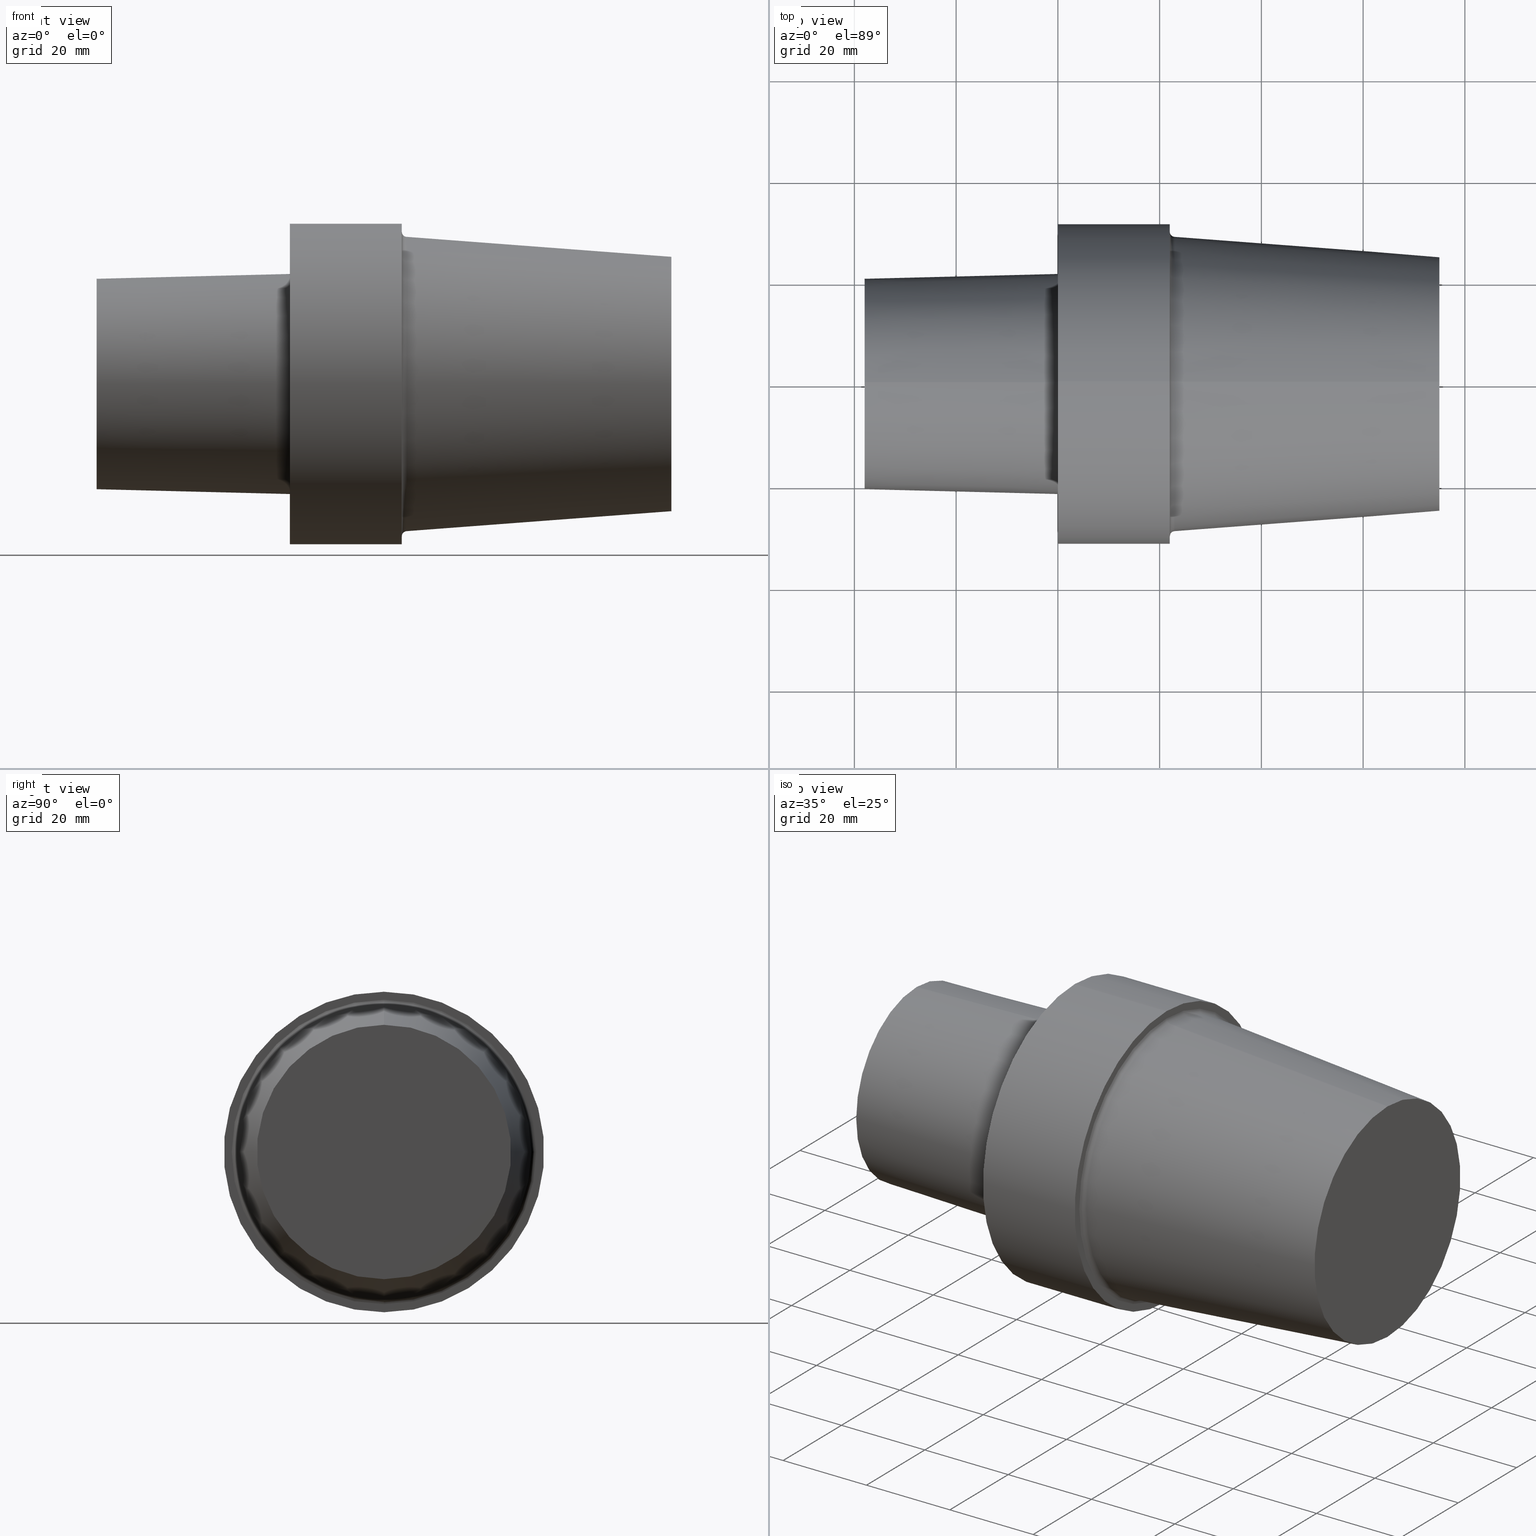
[diagram: canonical four-view strip — front | top / right | iso, engineering-drawing reading convention]
A machine part, canonical four-view strip (front | top / right | iso — engineering-drawing reading convention). The complete STEP part file that produces these views, byte-faithful:
ISO-10303-21;
HEADER;
FILE_DESCRIPTION (( 'STEP AP203' ),
    '1' );
FILE_NAME ('C6-S50-75.stp',
    '2022-03-11T15:33:46',
    ( '' ),
    ( '' ),
    'SwSTEP 2.0',
    'SolidWorks 2021',
    '' );
FILE_SCHEMA (( 'CONFIG_CONTROL_DESIGN' ));
ENDSEC;

DATA;
#1 = EDGE_CURVE ( 'NONE', #379, #260, #272, .T. ) ;
#2 = CARTESIAN_POINT ( 'NONE',  ( 74.99999992349999900, 0.000000000000000000, 0.000000000000000000 ) ) ;
#3 = CARTESIAN_POINT ( 'NONE',  ( 22.99999997654000339, 3.665046059601735471E-15, -29.92737221992073415 ) ) ;
#4 = AXIS2_PLACEMENT_3D ( 'NONE', #16, #364, #249 ) ;
#5 = EDGE_LOOP ( 'NONE', ( #57, #229, #126, #223 ) ) ;
#6 = DIRECTION ( 'NONE',  ( 0.000000000000000000, -1.224646799147346551E-16, 1.000000000000000000 ) ) ;
#7 = CARTESIAN_POINT ( 'NONE',  ( 0.000000000000000000, 0.000000000000000000, -21.63061196907898065 ) ) ;
#8 = LINE ( 'NONE', #239, #291 ) ;
#9 = CIRCLE ( 'NONE', #227, 0.9999999989800008038 ) ;
#10 = PRODUCT ( 'C6-S50-75', 'C6-S50-75', '', ( #366 ) ) ;
#11 = DATE_AND_TIME ( #102, #38 ) ;
#12 = EDGE_CURVE ( 'NONE', #189, #182, #350, .T. ) ;
#13 = PERSON_AND_ORGANIZATION ( #245, #79 ) ;
#14 = AXIS2_PLACEMENT_3D ( 'NONE', #41, #67, #180 ) ;
#15 = AXIS2_PLACEMENT_3D ( 'NONE', #209, #328, #302 ) ;
#16 = CARTESIAN_POINT ( 'NONE',  ( 0.000000000000000000, 0.000000000000000000, 0.000000000000000000 ) ) ;
#17 = CC_DESIGN_PERSON_AND_ORGANIZATION_ASSIGNMENT ( #128, #243, ( #152 ) ) ;
#18 = VERTEX_POINT ( 'NONE', #301 ) ;
#19 = ORIENTED_EDGE ( 'NONE', *, *, #27, .F. ) ;
#20 = CIRCLE ( 'NONE', #235, 31.49999996787000001 ) ;
#21 = COORDINATED_UNIVERSAL_TIME_OFFSET ( 6, 0, .BEHIND. ) ;
#22 = AXIS2_PLACEMENT_3D ( 'NONE', #69, #124, #150 ) ;
#23 = EDGE_LOOP ( 'NONE', ( #383, #311, #140, #289 ) ) ;
#24 = ADVANCED_FACE ( 'NONE', ( #155 ), #64, .F. ) ;
#25 = VERTEX_POINT ( 'NONE', #61 ) ;
#26 = ORIENTED_EDGE ( 'NONE', *, *, #141, .F. ) ;
#27 = EDGE_CURVE ( 'NONE', #18, #182, #9, .T. ) ;
#28 = DIRECTION ( 'NONE',  ( 0.000000000000000000, 0.000000000000000000, 1.000000000000000000 ) ) ;
#29 = CIRCLE ( 'NONE', #378, 31.49999996787000001 ) ;
#30 = FACE_OUTER_BOUND ( 'NONE', #5, .T. ) ;
#31 = LINE ( 'NONE', #386, #285 ) ;
#32 = DIRECTION ( 'NONE',  ( -1.000000000000000000, 0.000000000000000000, 0.000000000000000000 ) ) ;
#33 = EDGE_CURVE ( 'NONE', #384, #133, #220, .T. ) ;
#34 = FACE_OUTER_BOUND ( 'NONE', #118, .T. ) ;
#35 = DIRECTION ( 'NONE',  ( -1.000000000000000000, 0.000000000000000000, 0.000000000000000000 ) ) ;
#36 = DIRECTION ( 'NONE',  ( 0.000000000000000000, 0.000000000000000000, 1.000000000000000000 ) ) ;
#37 = AXIS2_PLACEMENT_3D ( 'NONE', #3, #207, #6 ) ;
#38 = LOCAL_TIME ( 9, 33, 46.00000000000000000, #157 ) ;
#39 = PLANE ( 'NONE',  #75 ) ;
#40 = DIRECTION ( 'NONE',  ( -1.000000000000000000, 0.000000000000000000, 0.000000000000000000 ) ) ;
#41 = CARTESIAN_POINT ( 'NONE',  ( 0.000000000000000000, 0.000000000000000000, 0.000000000000000000 ) ) ;
#42 = DATE_AND_TIME ( #275, #286 ) ;
#43 = CARTESIAN_POINT ( 'NONE',  ( 0.000000000000000000, 0.000000000000000000, 0.000000000000000000 ) ) ;
#44 = DIRECTION ( 'NONE',  ( 0.000000000000000000, 0.000000000000000000, 1.000000000000000000 ) ) ;
#45 = AXIS2_PLACEMENT_3D ( 'NONE', #144, #93, #358 ) ;
#46 = TOROIDAL_SURFACE ( 'NONE', #136, 29.92737221992073415, 0.9999999989799999156 ) ;
#47 = CONICAL_SURFACE ( 'NONE', #101, 24.99999997449999967, 0.07532889090399662313 ) ;
#48 = LOCAL_TIME ( 9, 33, 46.00000000000000000, #21 ) ;
#49 = ADVANCED_FACE ( 'NONE', ( #34 ), #206, .T. ) ;
#50 = CC_DESIGN_PERSON_AND_ORGANIZATION_ASSIGNMENT ( #363, #371, ( #254 ) ) ;
#51 = ORIENTED_EDGE ( 'NONE', *, *, #210, .F. ) ;
#52 = CALENDAR_DATE ( 2022, 11, 3 ) ;
#53 = ORIENTED_EDGE ( 'NONE', *, *, #130, .F. ) ;
#54 = APPROVAL_STATUS ( 'not_yet_approved' ) ;
#55 = ORIENTED_EDGE ( 'NONE', *, *, #103, .F. ) ;
#56 = COORDINATED_UNIVERSAL_TIME_OFFSET ( 6, 0, .BEHIND. ) ;
#57 = ORIENTED_EDGE ( 'NONE', *, *, #120, .T. ) ;
#58 = ORIENTED_EDGE ( 'NONE', *, *, #225, .T. ) ;
#59 = DIRECTION ( 'NONE',  ( 1.000000000000000000, 0.000000000000000000, 0.000000000000000000 ) ) ;
#60 = VECTOR ( 'NONE', #262, 1000.000000000000114 ) ;
#61 = CARTESIAN_POINT ( 'NONE',  ( 0.000000000000000000, 3.857637413379370248E-15, -31.49999996787000001 ) ) ;
#62 = EDGE_CURVE ( 'NONE', #133, #384, #329, .T. ) ;
#63 = CIRCLE ( 'NONE', #143, 21.63061196907898065 ) ;
#64 = PLANE ( 'NONE',  #163 ) ;
#65 = DIRECTION ( 'NONE',  ( 0.000000000000000000, 0.000000000000000000, 1.000000000000000000 ) ) ;
#66 = DIRECTION ( 'NONE',  ( -1.000000000000000000, 0.000000000000000000, 0.000000000000000000 ) ) ;
#67 = DIRECTION ( 'NONE',  ( 1.000000000000000000, 0.000000000000000000, 0.000000000000000000 ) ) ;
#68 = ADVANCED_FACE ( 'NONE', ( #123 ), #208, .T. ) ;
#69 = CARTESIAN_POINT ( 'NONE',  ( 74.99999992349999900, 0.000000000000000000, 0.000000000000000000 ) ) ;
#70 = LOCAL_TIME ( 9, 33, 46.00000000000000000, #161 ) ;
#71 = CARTESIAN_POINT ( 'NONE',  ( 0.000000000000000000, 2.648985971153096932E-15, 21.63061196907898065 ) ) ;
#72 = CARTESIAN_POINT ( 'NONE',  ( 0.000000000000000000, 2.648985971153096932E-15, 21.63061196907898065 ) ) ;
#73 =( LENGTH_UNIT ( ) NAMED_UNIT ( * ) SI_UNIT ( .MILLI., .METRE. ) );
#74 = EDGE_CURVE ( 'NONE', #190, #256, #84, .T. ) ;
#75 = AXIS2_PLACEMENT_3D ( 'NONE', #299, #59, #296 ) ;
#76 = EDGE_CURVE ( 'NONE', #317, #25, #20, .T. ) ;
#77 = CONICAL_SURFACE ( 'NONE', #274, 24.99999997449999967, 0.07532889090399662313 ) ;
#78 = PRODUCT_DEFINITION_SHAPE ( 'NONE', 'NONE',  #254 ) ;
#79 = ORGANIZATION ( 'UNSPECIFIED', 'UNSPECIFIED', '' ) ;
#80 = ORIENTED_EDGE ( 'NONE', *, *, #316, .F. ) ;
#81 = EDGE_LOOP ( 'NONE', ( #196, #253 ) ) ;
#82 = ORIENTED_EDGE ( 'NONE', *, *, #12, .T. ) ;
#83 = ADVANCED_FACE ( 'NONE', ( #267 ), #146, .F. ) ;
#84 = CIRCLE ( 'NONE', #135, 31.49999996787000001 ) ;
#85 = PERSON_AND_ORGANIZATION ( #245, #79 ) ;
#86 = EDGE_LOOP ( 'NONE', ( #169, #134, #82, #287 ) ) ;
#87 = CC_DESIGN_APPROVAL ( #119, ( #152 ) ) ;
#88 = APPLICATION_CONTEXT ( 'configuration controlled 3d designs of mechanical parts and assemblies' ) ;
#89 = ORIENTED_EDGE ( 'NONE', *, *, #216, .T. ) ;
#90 = DIRECTION ( 'NONE',  ( 0.000000000000000000, 0.000000000000000000, 1.000000000000000000 ) ) ;
#91 = DIRECTION ( 'NONE',  ( 0.000000000000000000, -1.000000000000000000, 0.000000000000000000 ) ) ;
#92 = DIRECTION ( 'NONE',  ( 0.000000000000000000, 0.000000000000000000, -1.000000000000000000 ) ) ;
#93 = DIRECTION ( 'NONE',  ( -1.000000000000000000, 0.000000000000000000, 0.000000000000000000 ) ) ;
#94 = DIRECTION ( 'NONE',  ( -1.000000000000000000, 0.000000000000000000, 0.000000000000000000 ) ) ;
#95 = DIRECTION ( 'NONE',  ( -1.000000000000000000, 0.000000000000000000, 0.000000000000000000 ) ) ;
#96 = CC_DESIGN_DATE_AND_TIME_ASSIGNMENT ( #42, #217, ( #254 ) ) ;
#97 = CARTESIAN_POINT ( 'NONE',  ( 22.99999997654000339, 0.000000000000000000, 29.92737221992073415 ) ) ;
#98 = DIRECTION ( 'NONE',  ( 0.000000000000000000, 1.000000000000000000, 0.000000000000000000 ) ) ;
#99 = PLANE ( 'NONE',  #15 ) ;
#100 = DIRECTION ( 'NONE',  ( -1.000000000000000000, 0.000000000000000000, 0.000000000000000000 ) ) ;
#101 = AXIS2_PLACEMENT_3D ( 'NONE', #263, #282, #154 ) ;
#102 = CALENDAR_DATE ( 2022, 11, 3 ) ;
#103 = EDGE_CURVE ( 'NONE', #345, #18, #369, .T. ) ;
#104 = APPROVAL_DATE_TIME ( #11, #119 ) ;
#105 = ORIENTED_EDGE ( 'NONE', *, *, #33, .T. ) ;
#106 = AXIS2_PLACEMENT_3D ( 'NONE', #293, #100, #295 ) ;
#107 = CIRCLE ( 'NONE', #22, 24.99999997449999967 ) ;
#108 = COORDINATED_UNIVERSAL_TIME_OFFSET ( 6, 0, .BEHIND. ) ;
#109 = DIRECTION ( 'NONE',  ( -1.000000000000000000, 0.000000000000000000, 0.000000000000000000 ) ) ;
#110 = ORIENTED_EDGE ( 'NONE', *, *, #361, .T. ) ;
#111 = DESIGN_CONTEXT ( 'detailed design', #88, 'design' ) ;
#112 = CONICAL_SURFACE ( 'NONE', #319, 21.63061196907898065, 0.02499698951949481940 ) ;
#113 = CC_DESIGN_APPROVAL ( #355, ( #254 ) ) ;
#114 = EDGE_LOOP ( 'NONE', ( #105, #288 ) ) ;
#115 = ORIENTED_EDGE ( 'NONE', *, *, #62, .F. ) ;
#116 = ORIENTED_EDGE ( 'NONE', *, *, #185, .F. ) ;
#117 = LOCAL_TIME ( 9, 33, 46.00000000000000000, #56 ) ;
#118 = EDGE_LOOP ( 'NONE', ( #255, #193, #58, #26 ) ) ;
#119 = APPROVAL ( #218, 'UNSPECIFIED' ) ;
#120 = EDGE_CURVE ( 'NONE', #189, #379, #107, .T. ) ;
#121 = DIRECTION ( 'NONE',  ( -1.000000000000000000, 0.000000000000000000, 0.000000000000000000 ) ) ;
#122 = DIRECTION ( 'NONE',  ( -0.9971641204809192915, 9.216406412095682842E-18, -0.07525766954612962689 ) ) ;
#123 = FACE_OUTER_BOUND ( 'NONE', #23, .T. ) ;
#124 = DIRECTION ( 'NONE',  ( -1.000000000000000000, 0.000000000000000000, 0.000000000000000000 ) ) ;
#125 = DIRECTION ( 'NONE',  ( 0.000000000000000000, 0.000000000000000000, 1.000000000000000000 ) ) ;
#126 = ORIENTED_EDGE ( 'NONE', *, *, #305, .F. ) ;
#127 = AXIS2_PLACEMENT_3D ( 'NONE', #149, #292, #266 ) ;
#128 = PERSON_AND_ORGANIZATION ( #245, #79 ) ;
#129 =( NAMED_UNIT ( * ) PLANE_ANGLE_UNIT ( ) SI_UNIT ( $, .RADIAN. ) );
#130 = EDGE_CURVE ( 'NONE', #133, #348, #331, .T. ) ;
#131 = AXIS2_PLACEMENT_3D ( 'NONE', #321, #357, #148 ) ;
#132 = PERSON_AND_ORGANIZATION ( #245, #79 ) ;
#133 = VERTEX_POINT ( 'NONE', #270 ) ;
#134 = ORIENTED_EDGE ( 'NONE', *, *, #185, .T. ) ;
#135 = AXIS2_PLACEMENT_3D ( 'NONE', #201, #147, #324 ) ;
#136 = AXIS2_PLACEMENT_3D ( 'NONE', #162, #250, #44 ) ;
#137 = ORIENTED_EDGE ( 'NONE', *, *, #290, .T. ) ;
#138 = VERTEX_POINT ( 'NONE', #7 ) ;
#139 = DATE_AND_TIME ( #381, #48 ) ;
#140 = ORIENTED_EDGE ( 'NONE', *, *, #76, .F. ) ;
#141 = EDGE_CURVE ( 'NONE', #25, #317, #29, .T. ) ;
#142 = CC_DESIGN_DATE_AND_TIME_ASSIGNMENT ( #168, #310, ( #300 ) ) ;
#143 = AXIS2_PLACEMENT_3D ( 'NONE', #200, #176, #145 ) ;
#144 = CARTESIAN_POINT ( 'NONE',  ( -37.99999996124000035, 0.000000000000000000, 0.000000000000000000 ) ) ;
#145 = DIRECTION ( 'NONE',  ( 0.000000000000000000, 0.000000000000000000, 1.000000000000000000 ) ) ;
#146 = PLANE ( 'NONE',  #313 ) ;
#147 = DIRECTION ( 'NONE',  ( -1.000000000000000000, 0.000000000000000000, 0.000000000000000000 ) ) ;
#148 = DIRECTION ( 'NONE',  ( 0.000000000000000000, 0.000000000000000000, 1.000000000000000000 ) ) ;
#149 = CARTESIAN_POINT ( 'NONE',  ( 0.000000000000000000, 0.000000000000000000, 0.000000000000000000 ) ) ;
#150 = DIRECTION ( 'NONE',  ( 0.000000000000000000, 0.000000000000000000, 1.000000000000000000 ) ) ;
#151 = CIRCLE ( 'NONE', #131, 29.92737221947408344 ) ;
#152 = PRODUCT_DEFINITION_FORMATION_WITH_SPECIFIED_SOURCE ( 'ANY', '', #10, .NOT_KNOWN. ) ;
#153 = FACE_OUTER_BOUND ( 'NONE', #81, .T. ) ;
#154 = DIRECTION ( 'NONE',  ( 0.000000000000000000, 0.000000000000000000, 1.000000000000000000 ) ) ;
#155 = FACE_OUTER_BOUND ( 'NONE', #114, .T. ) ;
#156 = LINE ( 'NONE', #360, #228 ) ;
#157 = COORDINATED_UNIVERSAL_TIME_OFFSET ( 6, 0, .BEHIND. ) ;
#158 = FACE_OUTER_BOUND ( 'NONE', #226, .T. ) ;
#159 = ADVANCED_FACE ( 'NONE', ( #231 ), #46, .F. ) ;
#160 = FACE_OUTER_BOUND ( 'NONE', #219, .T. ) ;
#161 = COORDINATED_UNIVERSAL_TIME_OFFSET ( 6, 0, .BEHIND. ) ;
#162 = CARTESIAN_POINT ( 'NONE',  ( 22.99999997654000339, 0.000000000000000000, 0.000000000000000000 ) ) ;
#163 = AXIS2_PLACEMENT_3D ( 'NONE', #236, #177, #98 ) ;
#164 = CARTESIAN_POINT ( 'NONE',  ( 22.99999997654000339, 0.000000000000000000, 0.000000000000000000 ) ) ;
#165 = APPROVAL_STATUS ( 'not_yet_approved' ) ;
#166 = EDGE_LOOP ( 'NONE', ( #281, #116 ) ) ;
#167 = ADVANCED_FACE ( 'NONE', ( #337, #158 ), #39, .F. ) ;
#168 = DATE_AND_TIME ( #52, #117 ) ;
#169 = ORIENTED_EDGE ( 'NONE', *, *, #1, .F. ) ;
#170 =( GEOMETRIC_REPRESENTATION_CONTEXT ( 3 ) GLOBAL_UNCERTAINTY_ASSIGNED_CONTEXT ( ( #194 ) ) GLOBAL_UNIT_ASSIGNED_CONTEXT ( ( #73, #129, #306 ) ) REPRESENTATION_CONTEXT ( 'NONE', 'WORKASPACE' ) );
#171 = ORIENTED_EDGE ( 'NONE', *, *, #277, .T. ) ;
#172 = ORIENTED_EDGE ( 'NONE', *, *, #27, .T. ) ;
#173 = EDGE_LOOP ( 'NONE', ( #80, #341, #172, #312 ) ) ;
#174 = CARTESIAN_POINT ( 'NONE',  ( 21.99999997755999814, 0.000000000000000000, 31.49999996787000001 ) ) ;
#175 = DIRECTION ( 'NONE',  ( 0.000000000000000000, 0.000000000000000000, -1.000000000000000000 ) ) ;
#176 = DIRECTION ( 'NONE',  ( -1.000000000000000000, 0.000000000000000000, 0.000000000000000000 ) ) ;
#177 = DIRECTION ( 'NONE',  ( 1.000000000000000000, 0.000000000000000000, 0.000000000000000000 ) ) ;
#178 = CARTESIAN_POINT ( 'NONE',  ( 74.99999992349999900, 0.000000000000000000, 0.000000000000000000 ) ) ;
#179 = CARTESIAN_POINT ( 'NONE',  ( 0.000000000000000000, 0.000000000000000000, 0.000000000000000000 ) ) ;
#180 = DIRECTION ( 'NONE',  ( 0.000000000000000000, 0.000000000000000000, -1.000000000000000000 ) ) ;
#181 = CONICAL_SURFACE ( 'NONE', #14, 21.63061196907898065, 0.02499698951949481940 ) ;
#182 = VERTEX_POINT ( 'NONE', #230 ) ;
#183 = CIRCLE ( 'NONE', #370, 28.93020810049118552 ) ;
#184 = DIRECTION ( 'NONE',  ( 0.000000000000000000, 0.000000000000000000, 1.000000000000000000 ) ) ;
#185 = EDGE_CURVE ( 'NONE', #379, #189, #354, .T. ) ;
#186 = PERSON_AND_ORGANIZATION ( #245, #79 ) ;
#187 = CIRCLE ( 'NONE', #127, 21.63061196907898065 ) ;
#188 = CIRCLE ( 'NONE', #195, 28.93020810049118552 ) ;
#189 = VERTEX_POINT ( 'NONE', #349 ) ;
#190 = VERTEX_POINT ( 'NONE', #174 ) ;
#191 = ADVANCED_BREP_SHAPE_REPRESENTATION ( 'C6-S50-75', ( #248, #4 ), #170 ) ;
#192 = PERSON_AND_ORGANIZATION_ROLE ( 'classification_officer' ) ;
#193 = ORIENTED_EDGE ( 'NONE', *, *, #251, .T. ) ;
#194 = UNCERTAINTY_MEASURE_WITH_UNIT (LENGTH_MEASURE( 1.000000000000000082E-05 ), #73, 'distance_accuracy_value', 'NONE');
#195 = AXIS2_PLACEMENT_3D ( 'NONE', #214, #268, #36 ) ;
#196 = ORIENTED_EDGE ( 'NONE', *, *, #74, .F. ) ;
#197 = CARTESIAN_POINT ( 'NONE',  ( 74.99999992349999900, 0.000000000000000000, 0.000000000000000000 ) ) ;
#198 = ORIENTED_EDGE ( 'NONE', *, *, #316, .T. ) ;
#199 = CC_DESIGN_PERSON_AND_ORGANIZATION_ASSIGNMENT ( #13, #279, ( #10 ) ) ;
#200 = CARTESIAN_POINT ( 'NONE',  ( 0.000000000000000000, 0.000000000000000000, 0.000000000000000000 ) ) ;
#201 = CARTESIAN_POINT ( 'NONE',  ( 21.99999997755999814, 0.000000000000000000, 0.000000000000000000 ) ) ;
#202 = CARTESIAN_POINT ( 'NONE',  ( 22.92474230661676060, 3.542928674893338124E-15, -28.93020810049118552 ) ) ;
#203 = ORIENTED_EDGE ( 'NONE', *, *, #216, .F. ) ;
#204 = DIRECTION ( 'NONE',  ( 1.000000000000000000, 0.000000000000000000, 0.000000000000000000 ) ) ;
#205 = DIRECTION ( 'NONE',  ( -1.000000000000000000, 0.000000000000000000, 0.000000000000000000 ) ) ;
#206 = CYLINDRICAL_SURFACE ( 'NONE', #106, 31.49999996787000001 ) ;
#207 = DIRECTION ( 'NONE',  ( 0.000000000000000000, 1.000000000000000000, 1.224646799147350002E-16 ) ) ;
#208 = CYLINDRICAL_SURFACE ( 'NONE', #278, 31.49999996787000001 ) ;
#209 = CARTESIAN_POINT ( 'NONE',  ( 21.99999997755999814, 31.49999996787000001, 0.000000000000000000 ) ) ;
#210 = EDGE_CURVE ( 'NONE', #138, #348, #63, .T. ) ;
#211 = CIRCLE ( 'NONE', #37, 0.9999999989800008038 ) ;
#212 = CARTESIAN_POINT ( 'NONE',  ( 21.99999997755999814, 0.000000000000000000, 0.000000000000000000 ) ) ;
#213 = APPROVAL_PERSON_ORGANIZATION ( #85, #276, #280 ) ;
#214 = CARTESIAN_POINT ( 'NONE',  ( 22.92474230661676060, 0.000000000000000000, 0.000000000000000000 ) ) ;
#215 = APPLICATION_PROTOCOL_DEFINITION ( 'international standard', 'config_control_design', 1994, #88 ) ;
#216 = EDGE_CURVE ( 'NONE', #348, #138, #187, .T. ) ;
#217 = DATE_TIME_ROLE ( 'creation_date' ) ;
#218 = APPROVAL_STATUS ( 'not_yet_approved' ) ;
#219 = EDGE_LOOP ( 'NONE', ( #53, #309, #110, #224 ) ) ;
#220 = CIRCLE ( 'NONE', #376, 20.68052847366897140 ) ;
#221 = AXIS2_PLACEMENT_3D ( 'NONE', #197, #95, #90 ) ;
#222 = SHAPE_DEFINITION_REPRESENTATION ( #78, #191 ) ;
#223 = ORIENTED_EDGE ( 'NONE', *, *, #12, .F. ) ;
#224 = ORIENTED_EDGE ( 'NONE', *, *, #210, .T. ) ;
#225 = EDGE_CURVE ( 'NONE', #190, #317, #31, .T. ) ;
#226 = EDGE_LOOP ( 'NONE', ( #346, #284 ) ) ;
#227 = AXIS2_PLACEMENT_3D ( 'NONE', #97, #91, #175 ) ;
#228 = VECTOR ( 'NONE', #332, 1000.000000000000114 ) ;
#229 = ORIENTED_EDGE ( 'NONE', *, *, #1, .T. ) ;
#230 = CARTESIAN_POINT ( 'NONE',  ( 22.92474230661676060, 0.000000000000000000, 28.93020810049118552 ) ) ;
#231 = FACE_OUTER_BOUND ( 'NONE', #173, .T. ) ;
#232 = DIRECTION ( 'NONE',  ( -1.000000000000000000, 0.000000000000000000, 0.000000000000000000 ) ) ;
#233 = DIRECTION ( 'NONE',  ( 0.000000000000000000, 0.000000000000000000, 1.000000000000000000 ) ) ;
#234 = CARTESIAN_POINT ( 'NONE',  ( 21.99999997755999814, 0.000000000000000000, 0.000000000000000000 ) ) ;
#235 = AXIS2_PLACEMENT_3D ( 'NONE', #179, #352, #327 ) ;
#236 = CARTESIAN_POINT ( 'NONE',  ( -37.99999996124000035, 20.68052847366897140, 0.000000000000000000 ) ) ;
#237 = CARTESIAN_POINT ( 'NONE',  ( 74.99999992349999900, 0.000000000000000000, 24.99999997449999967 ) ) ;
#238 = ADVANCED_FACE ( 'NONE', ( #322 ), #77, .T. ) ;
#239 = CARTESIAN_POINT ( 'NONE',  ( -37.99999996124000035, 3.857637413379370248E-15, -31.49999996787000001 ) ) ;
#240 = CARTESIAN_POINT ( 'NONE',  ( 0.000000000000000000, 0.000000000000000000, 0.000000000000000000 ) ) ;
#241 = DIRECTION ( 'NONE',  ( -1.000000000000000000, 0.000000000000000000, 0.000000000000000000 ) ) ;
#242 = DATE_AND_TIME ( #304, #70 ) ;
#243 = PERSON_AND_ORGANIZATION_ROLE ( 'creator' ) ;
#244 = CARTESIAN_POINT ( 'NONE',  ( 74.99999992349999900, 3.302272834819433089E-15, -24.99999997449999967 ) ) ;
#245 = PERSON ( 'UNSPECIFIED', 'UNSPECIFIED', 'UNSPECIFIED', ('UNSPECIFIED'), ('UNSPECIFIED'), ('UNSPECIFIED') ) ;
#246 = APPROVAL_ROLE ( '' ) ;
#247 = AXIS2_PLACEMENT_3D ( 'NONE', #234, #94, #125 ) ;
#248 = MANIFOLD_SOLID_BREP ( 'Scale1', #339 ) ;
#249 = DIRECTION ( 'NONE',  ( 1.000000000000000000, 0.000000000000000000, 0.000000000000000000 ) ) ;
#250 = DIRECTION ( 'NONE',  ( -1.000000000000000000, 0.000000000000000000, 0.000000000000000000 ) ) ;
#251 = EDGE_CURVE ( 'NONE', #256, #190, #314, .T. ) ;
#252 = APPROVAL_DATE_TIME ( #139, #276 ) ;
#253 = ORIENTED_EDGE ( 'NONE', *, *, #251, .F. ) ;
#254 = PRODUCT_DEFINITION ( 'UNKNOWN', '', #152, #111 ) ;
#255 = ORIENTED_EDGE ( 'NONE', *, *, #257, .F. ) ;
#256 = VERTEX_POINT ( 'NONE', #353 ) ;
#257 = EDGE_CURVE ( 'NONE', #256, #25, #8, .T. ) ;
#258 = EDGE_LOOP ( 'NONE', ( #115, #344, #89, #365 ) ) ;
#259 = PERSON_AND_ORGANIZATION_ROLE ( 'design_supplier' ) ;
#260 = VERTEX_POINT ( 'NONE', #202 ) ;
#261 = CC_DESIGN_APPROVAL ( #276, ( #300 ) ) ;
#262 = DIRECTION ( 'NONE',  ( -0.9971641204809192915, 0.000000000000000000, 0.07525766954612962689 ) ) ;
#263 = CARTESIAN_POINT ( 'NONE',  ( 74.99999992349999900, 0.000000000000000000, 0.000000000000000000 ) ) ;
#264 = ADVANCED_FACE ( 'NONE', ( #351 ), #112, .T. ) ;
#265 = DIRECTION ( 'NONE',  ( 0.000000000000000000, 0.000000000000000000, 1.000000000000000000 ) ) ;
#266 = DIRECTION ( 'NONE',  ( 0.000000000000000000, 0.000000000000000000, 1.000000000000000000 ) ) ;
#267 = FACE_OUTER_BOUND ( 'NONE', #166, .T. ) ;
#268 = DIRECTION ( 'NONE',  ( -1.000000000000000000, 0.000000000000000000, 0.000000000000000000 ) ) ;
#269 = AXIS2_PLACEMENT_3D ( 'NONE', #212, #35, #233 ) ;
#270 = CARTESIAN_POINT ( 'NONE',  ( -37.99999996124000035, 2.590810135574270981E-15, 20.68052847366897140 ) ) ;
#271 = CARTESIAN_POINT ( 'NONE',  ( 21.99999997755999814, 3.665046059574384875E-15, -29.92737221969742833 ) ) ;
#272 = LINE ( 'NONE', #318, #307 ) ;
#273 = CARTESIAN_POINT ( 'NONE',  ( 22.92474230661676060, 0.000000000000000000, 0.000000000000000000 ) ) ;
#274 = AXIS2_PLACEMENT_3D ( 'NONE', #178, #294, #184 ) ;
#275 = CALENDAR_DATE ( 2022, 11, 3 ) ;
#276 = APPROVAL ( #54, 'UNSPECIFIED' ) ;
#277 = EDGE_CURVE ( 'NONE', #18, #345, #151, .T. ) ;
#278 = AXIS2_PLACEMENT_3D ( 'NONE', #387, #40, #356 ) ;
#279 = PERSON_AND_ORGANIZATION_ROLE ( 'design_owner' ) ;
#280 = APPROVAL_ROLE ( '' ) ;
#281 = ORIENTED_EDGE ( 'NONE', *, *, #120, .F. ) ;
#282 = DIRECTION ( 'NONE',  ( -1.000000000000000000, 0.000000000000000000, 0.000000000000000000 ) ) ;
#283 = SECURITY_CLASSIFICATION_LEVEL ( 'unclassified' ) ;
#284 = ORIENTED_EDGE ( 'NONE', *, *, #141, .T. ) ;
#285 = VECTOR ( 'NONE', #205, 1000.000000000000000 ) ;
#286 = LOCAL_TIME ( 9, 33, 46.00000000000000000, #108 ) ;
#287 = ORIENTED_EDGE ( 'NONE', *, *, #290, .F. ) ;
#288 = ORIENTED_EDGE ( 'NONE', *, *, #62, .T. ) ;
#289 = ORIENTED_EDGE ( 'NONE', *, *, #225, .F. ) ;
#290 = EDGE_CURVE ( 'NONE', #260, #182, #183, .T. ) ;
#291 = VECTOR ( 'NONE', #232, 1000.000000000000000 ) ;
#292 = DIRECTION ( 'NONE',  ( -1.000000000000000000, 0.000000000000000000, 0.000000000000000000 ) ) ;
#293 = CARTESIAN_POINT ( 'NONE',  ( -37.99999996124000035, 0.000000000000000000, 0.000000000000000000 ) ) ;
#294 = DIRECTION ( 'NONE',  ( -1.000000000000000000, 0.000000000000000000, 0.000000000000000000 ) ) ;
#295 = DIRECTION ( 'NONE',  ( 0.000000000000000000, 0.000000000000000000, 1.000000000000000000 ) ) ;
#296 = DIRECTION ( 'NONE',  ( 0.000000000000000000, 1.000000000000000000, 0.000000000000000000 ) ) ;
#297 = DIRECTION ( 'NONE',  ( 0.000000000000000000, 0.000000000000000000, 1.000000000000000000 ) ) ;
#298 = FACE_BOUND ( 'NONE', #374, .T. ) ;
#299 = CARTESIAN_POINT ( 'NONE',  ( 0.000000000000000000, 31.49999996787000001, 0.000000000000000000 ) ) ;
#300 = SECURITY_CLASSIFICATION ( '', '', #283 ) ;
#301 = CARTESIAN_POINT ( 'NONE',  ( 21.99999997755999814, 0.000000000000000000, 29.92737221969742833 ) ) ;
#302 = DIRECTION ( 'NONE',  ( 0.000000000000000000, 0.000000000000000000, 1.000000000000000000 ) ) ;
#303 = APPROVAL_DATE_TIME ( #242, #355 ) ;
#304 = CALENDAR_DATE ( 2022, 11, 3 ) ;
#305 = EDGE_CURVE ( 'NONE', #182, #260, #188, .T. ) ;
#306 =( NAMED_UNIT ( * ) SI_UNIT ( $, .STERADIAN. ) SOLID_ANGLE_UNIT ( ) );
#307 = VECTOR ( 'NONE', #122, 1000.000000000000114 ) ;
#308 = AXIS2_PLACEMENT_3D ( 'NONE', #164, #109, #336 ) ;
#309 = ORIENTED_EDGE ( 'NONE', *, *, #33, .F. ) ;
#310 = DATE_TIME_ROLE ( 'classification_date' ) ;
#311 = ORIENTED_EDGE ( 'NONE', *, *, #257, .T. ) ;
#312 = ORIENTED_EDGE ( 'NONE', *, *, #305, .T. ) ;
#313 = AXIS2_PLACEMENT_3D ( 'NONE', #2, #66, #297 ) ;
#314 = CIRCLE ( 'NONE', #247, 31.49999996787000001 ) ;
#315 = ORIENTED_EDGE ( 'NONE', *, *, #103, .T. ) ;
#316 = EDGE_CURVE ( 'NONE', #345, #260, #211, .T. ) ;
#317 = VERTEX_POINT ( 'NONE', #325 ) ;
#318 = CARTESIAN_POINT ( 'NONE',  ( 74.99999992349999900, 3.061616994745535943E-15, -24.99999997449999967 ) ) ;
#319 = AXIS2_PLACEMENT_3D ( 'NONE', #43, #204, #92 ) ;
#320 = EDGE_LOOP ( 'NONE', ( #51, #203 ) ) ;
#321 = CARTESIAN_POINT ( 'NONE',  ( 21.99999997755999814, 0.000000000000000000, 0.000000000000000000 ) ) ;
#322 = FACE_OUTER_BOUND ( 'NONE', #86, .T. ) ;
#323 = CC_DESIGN_PERSON_AND_ORGANIZATION_ASSIGNMENT ( #377, #192, ( #300 ) ) ;
#324 = DIRECTION ( 'NONE',  ( 0.000000000000000000, 0.000000000000000000, 1.000000000000000000 ) ) ;
#325 = CARTESIAN_POINT ( 'NONE',  ( 0.000000000000000000, 0.000000000000000000, 31.49999996787000001 ) ) ;
#326 = APPLICATION_CONTEXT ( 'configuration controlled 3d designs of mechanical parts and assemblies' ) ;
#327 = DIRECTION ( 'NONE',  ( 0.000000000000000000, 0.000000000000000000, 1.000000000000000000 ) ) ;
#328 = DIRECTION ( 'NONE',  ( -1.000000000000000000, 0.000000000000000000, 0.000000000000000000 ) ) ;
#329 = CIRCLE ( 'NONE', #45, 20.68052847366897140 ) ;
#330 = TOROIDAL_SURFACE ( 'NONE', #308, 29.92737221992073415, 0.9999999989799999156 ) ;
#331 = LINE ( 'NONE', #71, #340 ) ;
#332 = DIRECTION ( 'NONE',  ( 0.9996875915253454759, 0.000000000000000000, -0.02499438637482059161 ) ) ;
#333 = APPLICATION_PROTOCOL_DEFINITION ( 'international standard', 'config_control_design', 1994, #326 ) ;
#334 = CARTESIAN_POINT ( 'NONE',  ( -37.99999996124000035, 0.000000000000000000, -20.68052847366897140 ) ) ;
#335 = ADVANCED_FACE ( 'NONE', ( #160 ), #181, .T. ) ;
#336 = DIRECTION ( 'NONE',  ( 0.000000000000000000, 0.000000000000000000, 1.000000000000000000 ) ) ;
#337 = FACE_BOUND ( 'NONE', #320, .T. ) ;
#338 = APPROVAL_ROLE ( '' ) ;
#339 = CLOSED_SHELL ( 'NONE', ( #24, #335, #167, #49, #347, #159, #238, #83, #367, #375, #68, #264 ) ) ;
#340 = VECTOR ( 'NONE', #385, 1000.000000000000114 ) ;
#341 = ORIENTED_EDGE ( 'NONE', *, *, #277, .F. ) ;
#342 = APPROVAL_PERSON_ORGANIZATION ( #186, #355, #246 ) ;
#343 = PERSON_AND_ORGANIZATION ( #245, #79 ) ;
#344 = ORIENTED_EDGE ( 'NONE', *, *, #130, .T. ) ;
#345 = VERTEX_POINT ( 'NONE', #271 ) ;
#346 = ORIENTED_EDGE ( 'NONE', *, *, #76, .T. ) ;
#347 = ADVANCED_FACE ( 'NONE', ( #298, #153 ), #99, .F. ) ;
#348 = VERTEX_POINT ( 'NONE', #72 ) ;
#349 = CARTESIAN_POINT ( 'NONE',  ( 74.99999992349999900, 0.000000000000000000, 24.99999997449999967 ) ) ;
#350 = LINE ( 'NONE', #237, #60 ) ;
#351 = FACE_OUTER_BOUND ( 'NONE', #258, .T. ) ;
#352 = DIRECTION ( 'NONE',  ( -1.000000000000000000, 0.000000000000000000, 0.000000000000000000 ) ) ;
#353 = CARTESIAN_POINT ( 'NONE',  ( 21.99999997755999814, 3.857637413379370248E-15, -31.49999996787000001 ) ) ;
#354 = CIRCLE ( 'NONE', #221, 24.99999997449999967 ) ;
#355 = APPROVAL ( #165, 'UNSPECIFIED' ) ;
#356 = DIRECTION ( 'NONE',  ( 0.000000000000000000, 0.000000000000000000, 1.000000000000000000 ) ) ;
#357 = DIRECTION ( 'NONE',  ( -1.000000000000000000, 0.000000000000000000, 0.000000000000000000 ) ) ;
#358 = DIRECTION ( 'NONE',  ( 0.000000000000000000, 0.000000000000000000, 1.000000000000000000 ) ) ;
#359 = CARTESIAN_POINT ( 'NONE',  ( -37.99999996124000035, 0.000000000000000000, 0.000000000000000000 ) ) ;
#360 = CARTESIAN_POINT ( 'NONE',  ( 0.000000000000000000, 0.000000000000000000, -21.63061196907898065 ) ) ;
#361 = EDGE_CURVE ( 'NONE', #384, #138, #156, .T. ) ;
#362 = CC_DESIGN_SECURITY_CLASSIFICATION ( #300, ( #152 ) ) ;
#363 = PERSON_AND_ORGANIZATION ( #245, #79 ) ;
#364 = DIRECTION ( 'NONE',  ( 0.000000000000000000, 0.000000000000000000, 1.000000000000000000 ) ) ;
#365 = ORIENTED_EDGE ( 'NONE', *, *, #361, .F. ) ;
#366 = MECHANICAL_CONTEXT ( 'NONE', #326, 'mechanical' ) ;
#367 = ADVANCED_FACE ( 'NONE', ( #30 ), #47, .T. ) ;
#368 = PRODUCT_RELATED_PRODUCT_CATEGORY ( 'detail', '', ( #10 ) ) ;
#369 = CIRCLE ( 'NONE', #269, 29.92737221947408344 ) ;
#370 = AXIS2_PLACEMENT_3D ( 'NONE', #273, #241, #65 ) ;
#371 = PERSON_AND_ORGANIZATION_ROLE ( 'creator' ) ;
#372 = APPROVAL_PERSON_ORGANIZATION ( #132, #119, #338 ) ;
#373 = FACE_OUTER_BOUND ( 'NONE', #382, .T. ) ;
#374 = EDGE_LOOP ( 'NONE', ( #171, #315 ) ) ;
#375 = ADVANCED_FACE ( 'NONE', ( #373 ), #330, .F. ) ;
#376 = AXIS2_PLACEMENT_3D ( 'NONE', #359, #32, #28 ) ;
#377 = PERSON_AND_ORGANIZATION ( #245, #79 ) ;
#378 = AXIS2_PLACEMENT_3D ( 'NONE', #240, #121, #265 ) ;
#379 = VERTEX_POINT ( 'NONE', #244 ) ;
#380 = CC_DESIGN_PERSON_AND_ORGANIZATION_ASSIGNMENT ( #343, #259, ( #152 ) ) ;
#381 = CALENDAR_DATE ( 2022, 11, 3 ) ;
#382 = EDGE_LOOP ( 'NONE', ( #55, #198, #137, #19 ) ) ;
#383 = ORIENTED_EDGE ( 'NONE', *, *, #74, .T. ) ;
#384 = VERTEX_POINT ( 'NONE', #334 ) ;
#385 = DIRECTION ( 'NONE',  ( 0.9996875915253454759, 3.060929527057623083E-18, 0.02499438637482059161 ) ) ;
#386 = CARTESIAN_POINT ( 'NONE',  ( -37.99999996124000035, 0.000000000000000000, 31.49999996787000001 ) ) ;
#387 = CARTESIAN_POINT ( 'NONE',  ( -37.99999996124000035, 0.000000000000000000, 0.000000000000000000 ) ) ;
ENDSEC;
END-ISO-10303-21;
